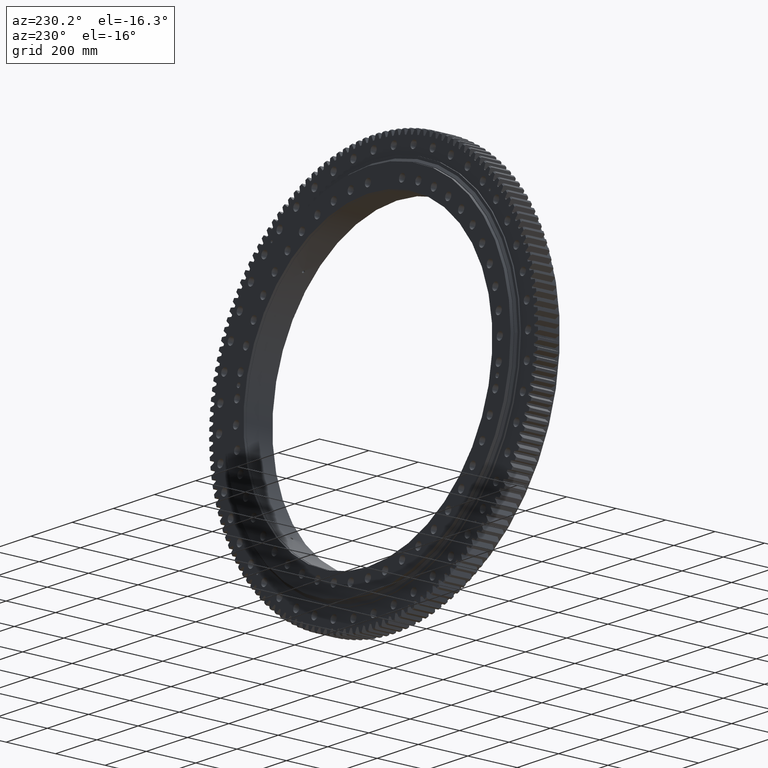
[diagram: clean part render]
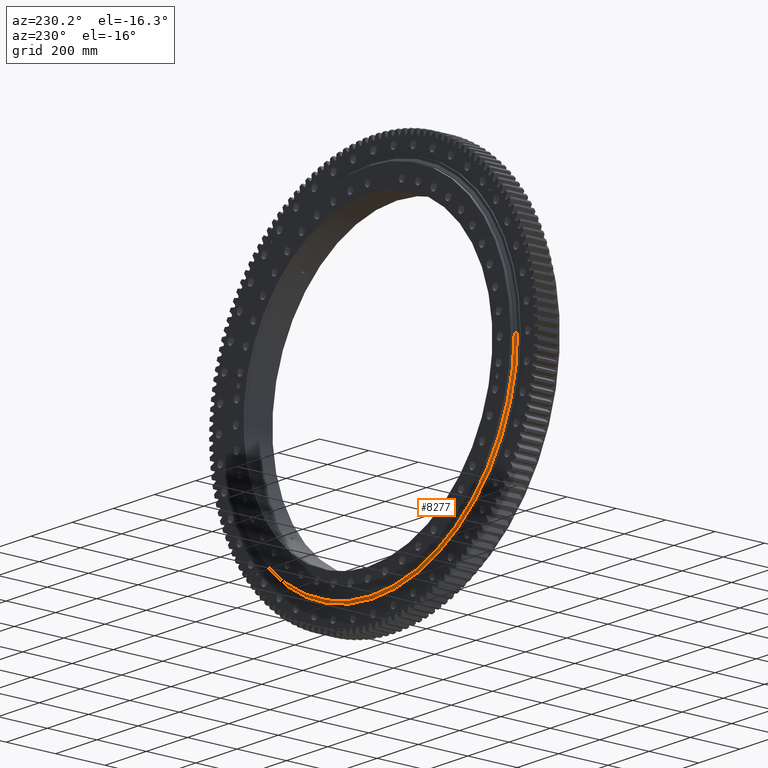
[diagram: same view with one face highlighted and labeled with its STEP entity id]
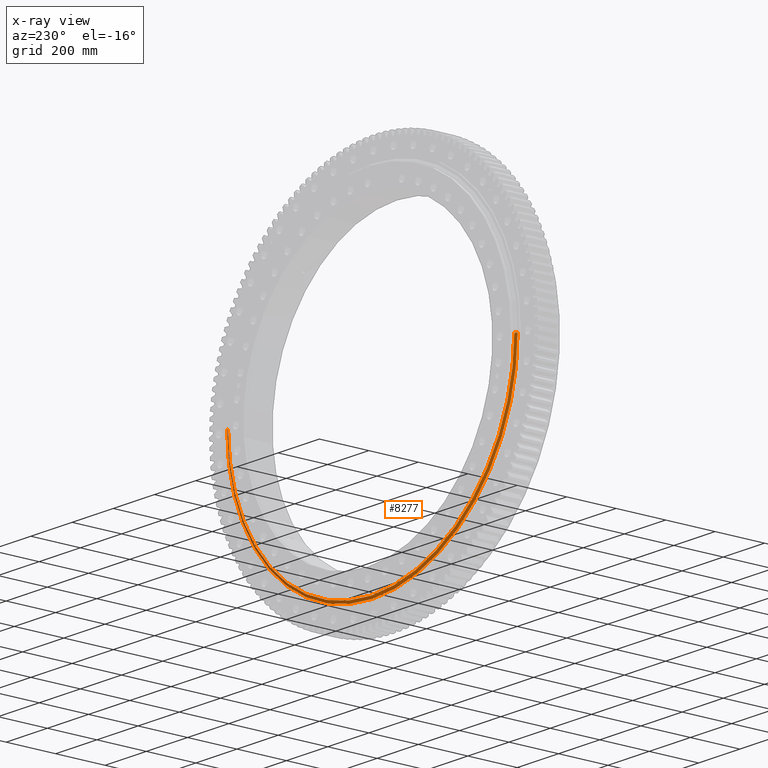
[diagram: x-ray of the same camera — body ghosted, the highlighted face saturated]
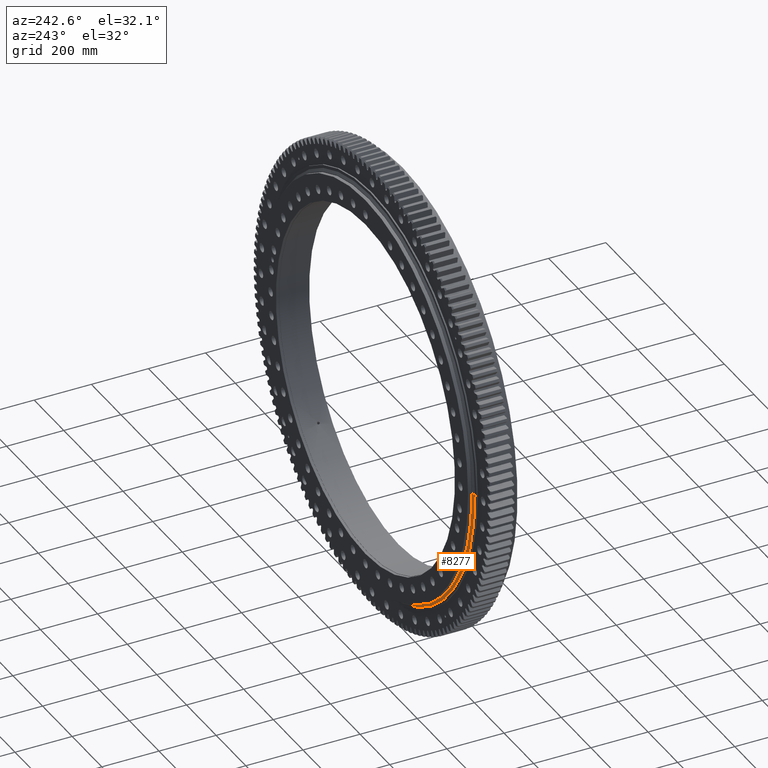
[diagram: same view with one face highlighted and labeled with its STEP entity id]
A machine part, auxiliary view. The second image highlights one B-rep face of the part: STEP entity #8277.
The next image is the same camera in x-ray: the body ghosted, the highlighted face saturated — about 0% of this face is hidden behind the body in this view.
A second angle (auxiliary view) of the same face is appended — the face is thin or edge-on in the first view.
In plain terms, the highlighted conical surface has half-angle 63.206 deg.
Its self-contained STEP definition (entity closure, byte-faithful):
#1280 = CARTESIAN_POINT ( 'NONE',  ( -704.7500000000000000, 52.50000000000001400, 8.630698316990970300E-014 ) ) ;
#1639 = DIRECTION ( 'NONE',  ( -1.000000000000000000, 1.797770280969127100E-016, 0.0000000000000000000 ) ) ;
#1672 = CARTESIAN_POINT ( 'NONE',  ( 704.7500000000000000, 52.49999999999975100, 0.0000000000000000000 ) ) ;
#3128 = CARTESIAN_POINT ( 'NONE',  ( 3.848214542398225000E-015, 52.49999999999987900, 0.0000000000000000000 ) ) ;
#3982 = DIRECTION ( 'NONE',  ( 1.000000000000000000, -1.870719888956897300E-016, 0.0000000000000000000 ) ) ;
#5358 = DIRECTION ( 'NONE',  ( -0.8926347946143687900, -0.4507805712802667200, 1.093162344032041500E-016 ) ) ;
#6292 = EDGE_CURVE ( 'NONE', #38323, #10976, #25765, .T. ) ;
#6521 = DIRECTION ( 'NONE',  ( -1.000000000000000000, 1.870719888956897300E-016, 0.0000000000000000000 ) ) ;
#7950 = CARTESIAN_POINT ( 'NONE',  ( 3.848214542398225000E-015, 52.49999999999987900, 0.0000000000000000000 ) ) ;
#8277 = ADVANCED_FACE ( 'NONE', ( #31423 ), #30387, .T. ) ;
#10976 = VERTEX_POINT ( 'NONE', #1280 ) ;
#12113 = EDGE_CURVE ( 'NONE', #31256, #38323, #37546, .T. ) ;
#12159 = ORIENTED_EDGE ( 'NONE', *, *, #27699, .F. ) ;
#13009 = AXIS2_PLACEMENT_3D ( 'NONE', #42136, #21858, #1639 ) ;
#13198 = AXIS2_PLACEMENT_3D ( 'NONE', #7950, #24851, #3982 ) ;
#14524 = AXIS2_PLACEMENT_3D ( 'NONE', #3128, #26779, #6521 ) ;
#14719 = CIRCLE ( 'NONE', #13009, 694.7500000000000000 ) ;
#15389 = ORIENTED_EDGE ( 'NONE', *, *, #27313, .F. ) ;
#21858 = DIRECTION ( 'NONE',  ( 1.836909530733565900E-016, 1.000000000000000000, -0.0000000000000000000 ) ) ;
#24851 = DIRECTION ( 'NONE',  ( -1.836909530733565900E-016, -1.000000000000000000, 0.0000000000000000000 ) ) ;
#25765 = CIRCLE ( 'NONE', #14524, 704.7500000000000000 ) ;
#26779 = DIRECTION ( 'NONE',  ( 1.836909530733565900E-016, 1.000000000000000000, -0.0000000000000000000 ) ) ;
#27313 = EDGE_CURVE ( 'NONE', #40765, #10976, #29597, .T. ) ;
#27699 = EDGE_CURVE ( 'NONE', #31256, #40765, #14719, .T. ) ;
#27899 = ORIENTED_EDGE ( 'NONE', *, *, #12113, .T. ) ;
#28159 = ORIENTED_EDGE ( 'NONE', *, *, #6292, .T. ) ;
#28532 = VECTOR ( 'NONE', #5358, 1000.000000000000100 ) ;
#28535 = VECTOR ( 'NONE', #38019, 1000.000000000000000 ) ;
#28989 = CARTESIAN_POINT ( 'NONE',  ( -704.7500000000000000, 52.50000000000001400, 8.630698316990971600E-014 ) ) ;
#29597 = LINE ( 'NONE', #28989, #28532 ) ;
#29847 = EDGE_LOOP ( 'NONE', ( #15389, #12159, #27899, #28159 ) ) ;
#30387 = CONICAL_SURFACE ( 'NONE', #13198, 704.7500000000000000, 1.103156723031657900 ) ;
#30558 = CARTESIAN_POINT ( 'NONE',  ( 694.7500000000000000, 57.54999999999987600, 0.0000000000000000000 ) ) ;
#31202 = CARTESIAN_POINT ( 'NONE',  ( 704.7500000000000000, 52.49999999999975100, 0.0000000000000000000 ) ) ;
#31256 = VERTEX_POINT ( 'NONE', #30558 ) ;
#31423 = FACE_OUTER_BOUND ( 'NONE', #29847, .T. ) ;
#37546 = LINE ( 'NONE', #31202, #28535 ) ;
#38019 = DIRECTION ( 'NONE',  ( 0.8926347946143685700, -0.4507805712802671100, 0.0000000000000000000 ) ) ;
#38323 = VERTEX_POINT ( 'NONE', #1672 ) ;
#40765 = VERTEX_POINT ( 'NONE', #41018 ) ;
#41018 = CARTESIAN_POINT ( 'NONE',  ( -694.7500000000000000, 57.55000000000013200, 8.569465977033602700E-014 ) ) ;
#42136 = CARTESIAN_POINT ( 'NONE',  ( 4.775853855418698800E-015, 57.55000000000000400, 0.0000000000000000000 ) ) ;